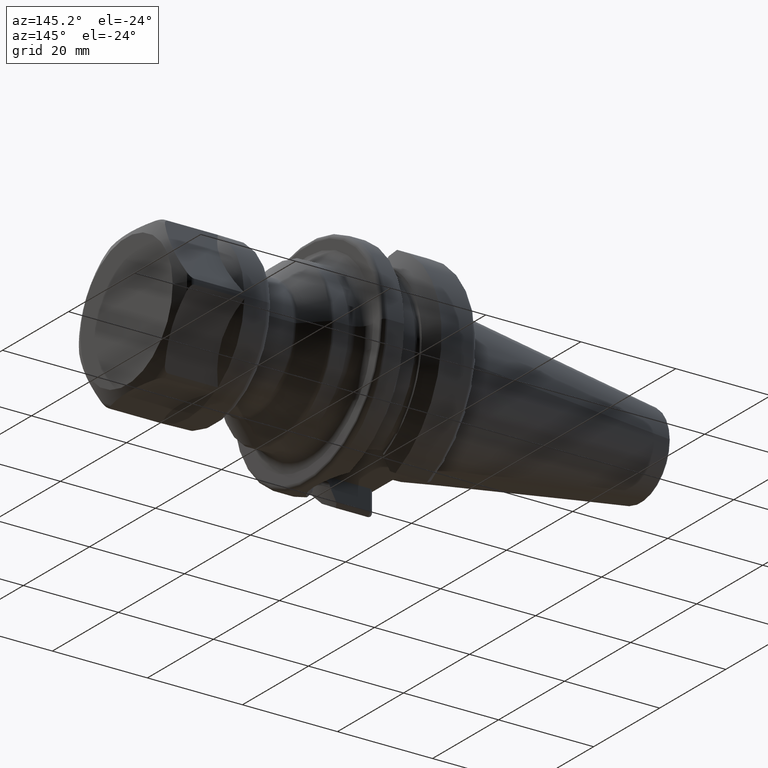
[diagram: clean part render]
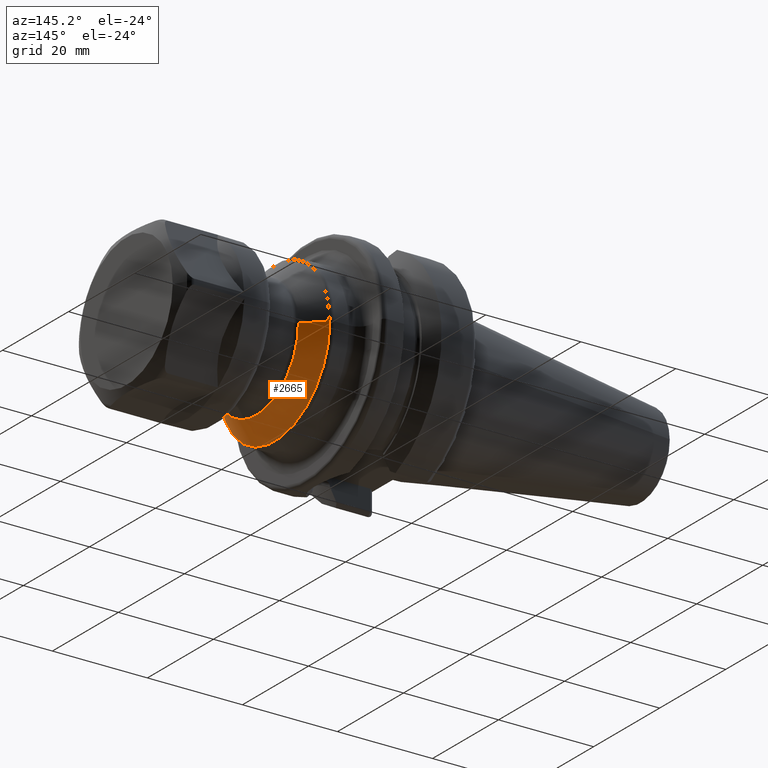
[diagram: same view with one face highlighted and labeled with its STEP entity id]
A machine part, auxiliary view. The second image highlights one B-rep face of the part: STEP entity #2665.
In plain terms, the highlighted conical surface has half-angle 45 deg.
Its self-contained STEP definition (entity closure, byte-faithful):
#880=CARTESIAN_POINT('',(2.879289321881E1,0.E0,0.E0));
#881=DIRECTION('',(-1.E0,0.E0,0.E0));
#882=DIRECTION('',(0.E0,1.E0,0.E0));
#883=AXIS2_PLACEMENT_3D('',#880,#881,#882);
#885=DIRECTION('',(-7.071067811865E-1,-7.071067811865E-1,-1.052007763394E-11));
#886=VECTOR('',#885,5.535533905927E0);
#887=CARTESIAN_POINT('',(3.270710678119E1,-1.279289321881E1,
5.785416226062E-14));
#888=LINE('',#887,#886);
#889=CARTESIAN_POINT('',(3.270710678119E1,0.E0,0.E0));
#890=DIRECTION('',(1.E0,0.E0,0.E0));
#891=DIRECTION('',(0.E0,-1.E0,0.E0));
#892=AXIS2_PLACEMENT_3D('',#889,#890,#891);
#894=DIRECTION('',(-7.071067811865E-1,7.071067811865E-1,1.052081114717E-11));
#895=VECTOR('',#894,5.535533905927E0);
#896=CARTESIAN_POINT('',(3.270710678119E1,1.279289321881E1,
-6.109077815453E-14));
#897=LINE('',#896,#895);
#1451=CARTESIAN_POINT('',(3.270710678119E1,-1.279289321881E1,0.E0));
#1452=CARTESIAN_POINT('',(3.270710678119E1,1.279289321881E1,0.E0));
#1453=VERTEX_POINT('',#1451);
#1454=VERTEX_POINT('',#1452);
#1467=CARTESIAN_POINT('',(2.879289321881E1,1.670710678119E1,0.E0));
#1468=CARTESIAN_POINT('',(2.879289321881E1,-1.670710678119E1,0.E0));
#1469=VERTEX_POINT('',#1467);
#1470=VERTEX_POINT('',#1468);
#2651=CARTESIAN_POINT('',(3.075E1,0.E0,0.E0));
#2652=DIRECTION('',(-1.E0,0.E0,0.E0));
#2653=DIRECTION('',(0.E0,1.E0,0.E0));
#2654=AXIS2_PLACEMENT_3D('',#2651,#2652,#2653);
#2655=CONICAL_SURFACE('',#2654,1.475E1,4.5E1);
#2656=ORIENTED_EDGE('',*,*,#2633,.T.);
#2658=ORIENTED_EDGE('',*,*,#2657,.F.);
#2660=ORIENTED_EDGE('',*,*,#2659,.T.);
#2662=ORIENTED_EDGE('',*,*,#2661,.T.);
#2663=EDGE_LOOP('',(#2656,#2658,#2660,#2662));
#2664=FACE_OUTER_BOUND('',#2663,.F.);
#2665=ADVANCED_FACE('',(#2664),#2655,.T.);
#884=CIRCLE('',#883,1.670710678119E1);
#893=CIRCLE('',#892,1.279289321881E1);
#2633=EDGE_CURVE('',#1469,#1470,#884,.T.);
#2657=EDGE_CURVE('',#1453,#1470,#888,.T.);
#2659=EDGE_CURVE('',#1453,#1454,#893,.T.);
#2661=EDGE_CURVE('',#1454,#1469,#897,.T.);